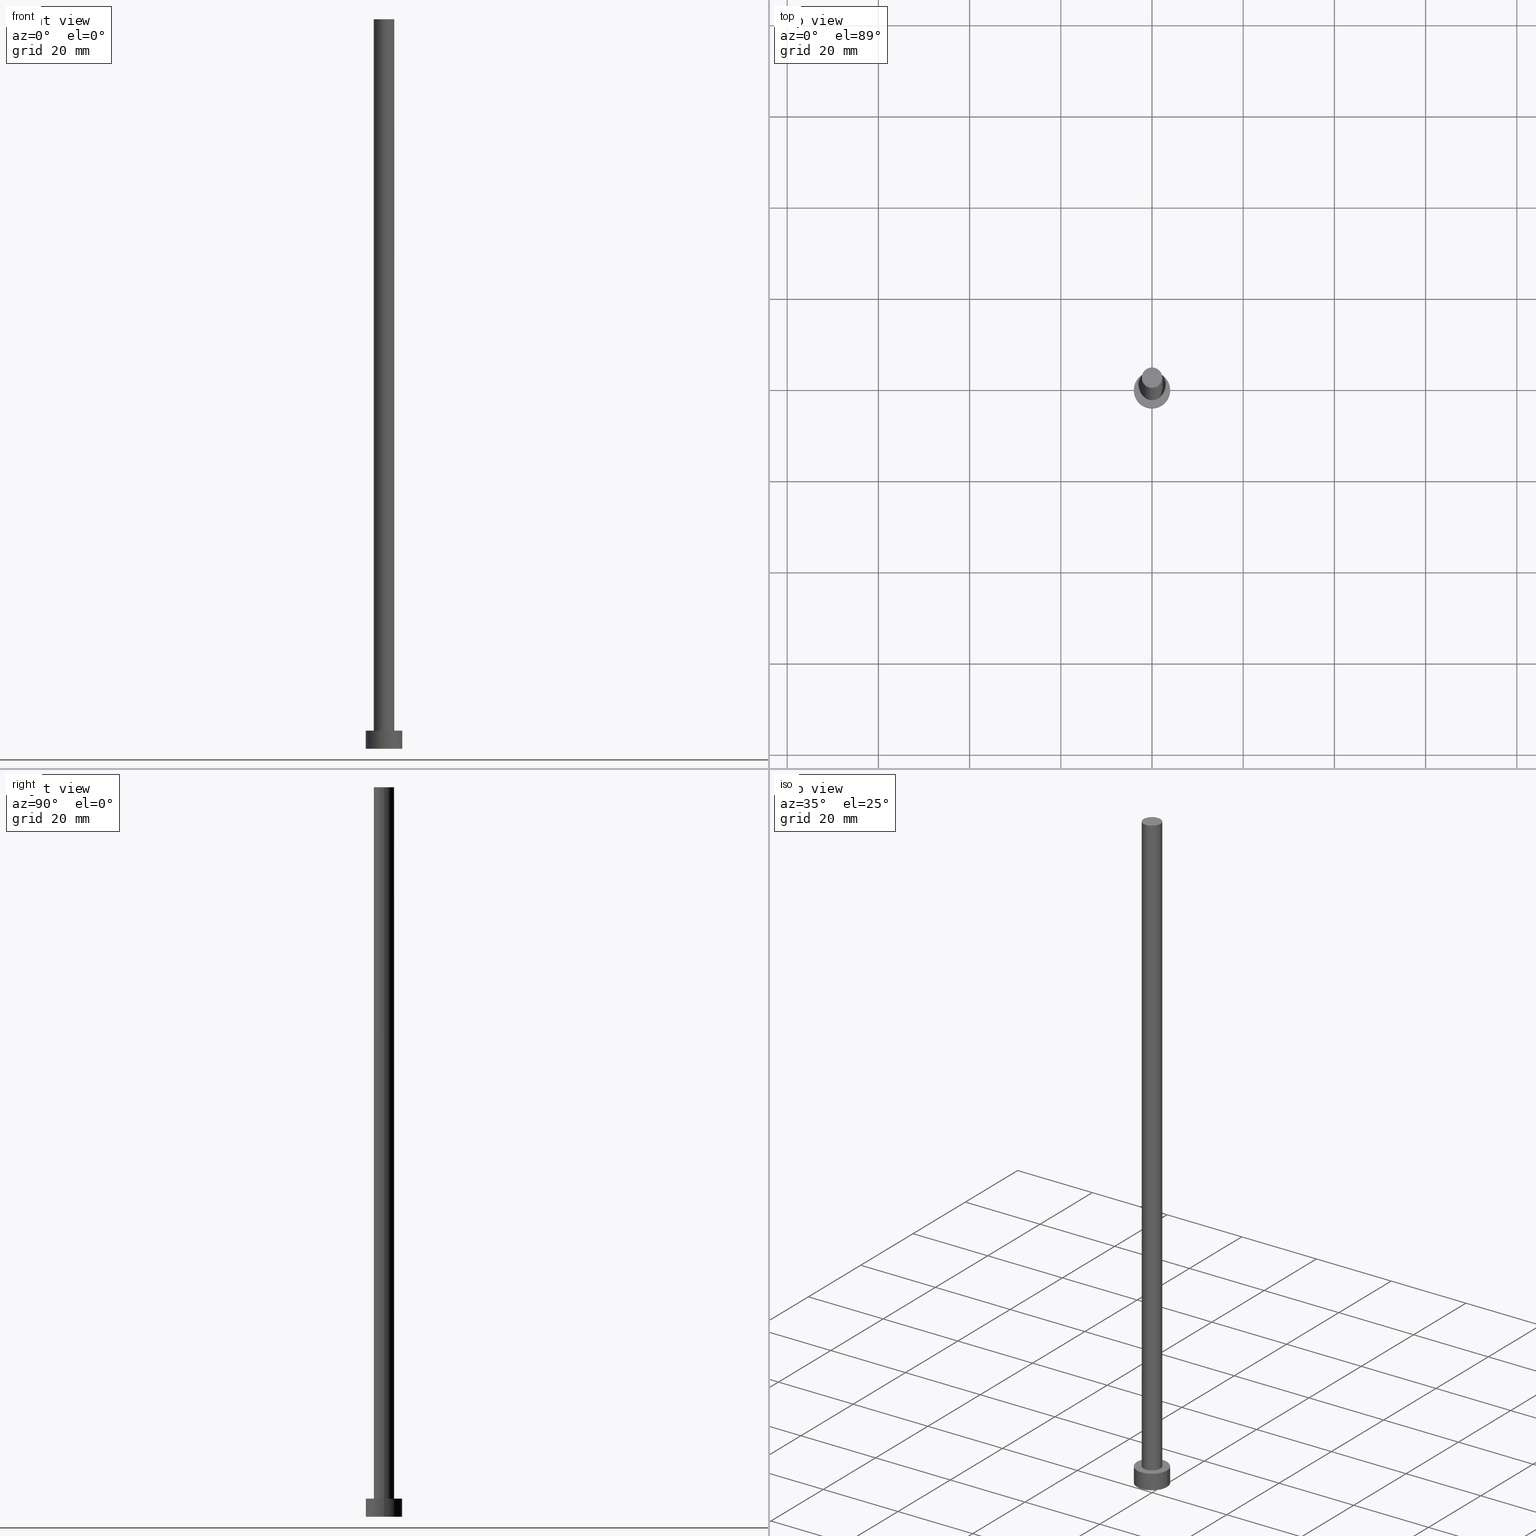
[diagram: canonical four-view strip — front | top / right | iso, engineering-drawing reading convention]
A machine part, canonical four-view strip (front | top / right | iso — engineering-drawing reading convention). The complete STEP part file that produces these views, byte-faithful:
ISO-10303-21;
HEADER;
FILE_DESCRIPTION (( 'STEP AP203' ),
    '1' );
FILE_NAME ('ed2b.STEP',
    '2023-02-13T16:20:48',
    ( '' ),
    ( '' ),
    'SwSTEP 2.0',
    'SolidWorks 2019',
    '' );
FILE_SCHEMA (( 'CONFIG_CONTROL_DESIGN' ));
ENDSEC;

DATA;
#1 = CARTESIAN_POINT ( 'NONE',  ( 2.250000000000000000, 2.755455298081544285E-16, 160.0000000000000000 ) ) ;
#2 = VECTOR ( 'NONE', #218, 1000.000000000000000 ) ;
#3 = APPLICATION_PROTOCOL_DEFINITION ( 'international standard', 'config_control_design', 1994, #136 ) ;
#4 = VERTEX_POINT ( 'NONE', #1 ) ;
#5 = AXIS2_PLACEMENT_3D ( 'NONE', #94, #140, #223 ) ;
#6 = ORIENTED_EDGE ( 'NONE', *, *, #172, .F. ) ;
#7 = DIRECTION ( 'NONE',  ( 0.000000000000000000, 0.000000000000000000, 1.000000000000000000 ) ) ;
#8 = FACE_OUTER_BOUND ( 'NONE', #186, .T. ) ;
#9 = DIRECTION ( 'NONE',  ( -0.000000000000000000, -0.000000000000000000, -1.000000000000000000 ) ) ;
#10 = FACE_OUTER_BOUND ( 'NONE', #206, .T. ) ;
#11 = VECTOR ( 'NONE', #240, 1000.000000000000000 ) ;
#12 = DATE_AND_TIME ( #67, #20 ) ;
#13 = DIRECTION ( 'NONE',  ( 1.000000000000000000, 0.000000000000000000, 0.000000000000000000 ) ) ;
#14 = AXIS2_PLACEMENT_3D ( 'NONE', #82, #127, #211 ) ;
#15 = LOCAL_TIME ( 17, 20, 48.00000000000000000, #170 ) ;
#16 = FACE_OUTER_BOUND ( 'NONE', #106, .T. ) ;
#17 = CC_DESIGN_PERSON_AND_ORGANIZATION_ASSIGNMENT ( #90, #244, ( #138 ) ) ;
#18 = DATE_AND_TIME ( #93, #182 ) ;
#19 = PRODUCT_DEFINITION_SHAPE ( 'NONE', 'NONE',  #22 ) ;
#20 = LOCAL_TIME ( 17, 20, 48.00000000000000000, #156 ) ;
#21 = ORIENTED_EDGE ( 'NONE', *, *, #172, .T. ) ;
#22 = PRODUCT_DEFINITION ( 'NEZN�M�', '', #149, #155 ) ;
#23 = ORIENTED_EDGE ( 'NONE', *, *, #200, .F. ) ;
#24 = EDGE_CURVE ( 'NONE', #4, #242, #166, .T. ) ;
#25 = VERTEX_POINT ( 'NONE', #59 ) ;
#26 = APPROVAL_DATE_TIME ( #209, #219 ) ;
#27 = ORIENTED_EDGE ( 'NONE', *, *, #181, .T. ) ;
#28 = LINE ( 'NONE', #30, #180 ) ;
#29 = CIRCLE ( 'NONE', #14, 2.250000000000000000 ) ;
#30 = CARTESIAN_POINT ( 'NONE',  ( 4.000000000000000000, 4.898587196589412829E-16, 4.000000000000000000 ) ) ;
#31 = APPROVAL_STATUS ( 'not_yet_approved' ) ;
#32 = CARTESIAN_POINT ( 'NONE',  ( 0.000000000000000000, 0.000000000000000000, 0.000000000000000000 ) ) ;
#33 = LINE ( 'NONE', #216, #2 ) ;
#34 = EDGE_CURVE ( 'NONE', #109, #242, #134, .T. ) ;
#35 = DIRECTION ( 'NONE',  ( 1.000000000000000000, 0.000000000000000000, 0.000000000000000000 ) ) ;
#36 = APPROVAL_DATE_TIME ( #18, #73 ) ;
#37 = CARTESIAN_POINT ( 'NONE',  ( 0.000000000000000000, 0.000000000000000000, 4.000000000000000000 ) ) ;
#38 = EDGE_CURVE ( 'NONE', #126, #100, #61, .T. ) ;
#39 = APPROVAL_ROLE ( '' ) ;
#40 = DIRECTION ( 'NONE',  ( 1.000000000000000000, 0.000000000000000000, 0.000000000000000000 ) ) ;
#41 = ORIENTED_EDGE ( 'NONE', *, *, #34, .F. ) ;
#42 = CARTESIAN_POINT ( 'NONE',  ( 2.250000000000000000, 2.755455298081544285E-16, 160.0000000000000000 ) ) ;
#43 = EDGE_LOOP ( 'NONE', ( #208, #124 ) ) ;
#44 = ORIENTED_EDGE ( 'NONE', *, *, #153, .F. ) ;
#45 = APPROVAL ( #31, 'NEUR�EN�' ) ;
#46 = CARTESIAN_POINT ( 'NONE',  ( -4.000000000000000000, 0.000000000000000000, 0.000000000000000000 ) ) ;
#47 = DIRECTION ( 'NONE',  ( 1.000000000000000000, 0.000000000000000000, 0.000000000000000000 ) ) ;
#48 = DIRECTION ( 'NONE',  ( -0.000000000000000000, -0.000000000000000000, -1.000000000000000000 ) ) ;
#49 = DIRECTION ( 'NONE',  ( 0.000000000000000000, 0.000000000000000000, 1.000000000000000000 ) ) ;
#50 = PRODUCT_RELATED_PRODUCT_CATEGORY ( 'detail', '', ( #138 ) ) ;
#51 = SECURITY_CLASSIFICATION ( '', '', #201 ) ;
#52 = LINE ( 'NONE', #53, #58 ) ;
#53 = CARTESIAN_POINT ( 'NONE',  ( -4.000000000000000000, 0.000000000000000000, 4.000000000000000000 ) ) ;
#54 = PERSON_AND_ORGANIZATION_ROLE ( 'classification_officer' ) ;
#55 = DIRECTION ( 'NONE',  ( 0.000000000000000000, 0.000000000000000000, 1.000000000000000000 ) ) ;
#56 = VERTEX_POINT ( 'NONE', #174 ) ;
#57 = AXIS2_PLACEMENT_3D ( 'NONE', #92, #130, #248 ) ;
#58 = VECTOR ( 'NONE', #139, 1000.000000000000000 ) ;
#59 = CARTESIAN_POINT ( 'NONE',  ( -2.250000000000000000, 0.000000000000000000, 160.0000000000000000 ) ) ;
#60 = ORIENTED_EDGE ( 'NONE', *, *, #228, .F. ) ;
#61 = CIRCLE ( 'NONE', #57, 4.000000000000000000 ) ;
#62 = PERSON_AND_ORGANIZATION_ROLE ( 'creator' ) ;
#63 = DIRECTION ( 'NONE',  ( 0.000000000000000000, 0.000000000000000000, 1.000000000000000000 ) ) ;
#64 = APPROVAL_ROLE ( '' ) ;
#65 = CYLINDRICAL_SURFACE ( 'NONE', #194, 4.000000000000000000 ) ;
#66 = DIRECTION ( 'NONE',  ( 0.000000000000000000, 0.000000000000000000, 1.000000000000000000 ) ) ;
#67 = CALENDAR_DATE ( 2023, 13, 2 ) ;
#68 = DIRECTION ( 'NONE',  ( -0.000000000000000000, -0.000000000000000000, -1.000000000000000000 ) ) ;
#69 = PERSON_AND_ORGANIZATION ( #160, #121 ) ;
#70 = DIRECTION ( 'NONE',  ( 1.000000000000000000, 0.000000000000000000, -0.000000000000000000 ) ) ;
#71 = CC_DESIGN_APPROVAL ( #219, ( #149 ) ) ;
#72 = PERSON_AND_ORGANIZATION_ROLE ( 'design_supplier' ) ;
#73 = APPROVAL ( #253, 'NEUR�EN�' ) ;
#74 = PERSON_AND_ORGANIZATION ( #160, #121 ) ;
#75 = CC_DESIGN_APPROVAL ( #45, ( #22 ) ) ;
#76 = ORIENTED_EDGE ( 'NONE', *, *, #164, .F. ) ;
#77 = APPROVAL_PERSON_ORGANIZATION ( #222, #73, #39 ) ;
#78 = EDGE_LOOP ( 'NONE', ( #6, #184, #169, #44 ) ) ;
#79 = ADVANCED_FACE ( 'NONE', ( #236 ), #151, .F. ) ;
#80 = ORIENTED_EDGE ( 'NONE', *, *, #38, .F. ) ;
#81 = APPROVAL_STATUS ( 'not_yet_approved' ) ;
#82 = CARTESIAN_POINT ( 'NONE',  ( 0.000000000000000000, 0.000000000000000000, 160.0000000000000000 ) ) ;
#83 = CC_DESIGN_PERSON_AND_ORGANIZATION_ASSIGNMENT ( #74, #72, ( #149 ) ) ;
#84 = APPLICATION_PROTOCOL_DEFINITION ( 'international standard', 'config_control_design', 1994, #198 ) ;
#85 = FACE_OUTER_BOUND ( 'NONE', #43, .T. ) ;
#86 = DIRECTION ( 'NONE',  ( 1.000000000000000000, 0.000000000000000000, 0.000000000000000000 ) ) ;
#87 = PERSON_AND_ORGANIZATION_ROLE ( 'creator' ) ;
#88 = CYLINDRICAL_SURFACE ( 'NONE', #224, 2.250000000000000000 ) ;
#89 = AXIS2_PLACEMENT_3D ( 'NONE', #129, #217, #190 ) ;
#90 = PERSON_AND_ORGANIZATION ( #160, #121 ) ;
#91 = ADVANCED_FACE ( 'NONE', ( #112, #85 ), #232, .T. ) ;
#92 = CARTESIAN_POINT ( 'NONE',  ( 0.000000000000000000, 0.000000000000000000, 4.000000000000000000 ) ) ;
#93 = CALENDAR_DATE ( 2023, 13, 2 ) ;
#94 = CARTESIAN_POINT ( 'NONE',  ( 0.000000000000000000, 0.000000000000000000, 160.0000000000000000 ) ) ;
#95 = DATE_AND_TIME ( #178, #105 ) ;
#96 = PERSON_AND_ORGANIZATION ( #160, #121 ) ;
#97 = CC_DESIGN_PERSON_AND_ORGANIZATION_ASSIGNMENT ( #96, #54, ( #51 ) ) ;
#98 = AXIS2_PLACEMENT_3D ( 'NONE', #152, #66, #70 ) ;
#99 =( NAMED_UNIT ( * ) PLANE_ANGLE_UNIT ( ) SI_UNIT ( $, .RADIAN. ) );
#100 = VERTEX_POINT ( 'NONE', #246 ) ;
#101 = CARTESIAN_POINT ( 'NONE',  ( 2.250000000000000000, 2.755455298081544285E-16, 4.000000000000000000 ) ) ;
#102 = ADVANCED_FACE ( 'NONE', ( #8 ), #110, .T. ) ;
#103 = AXIS2_PLACEMENT_3D ( 'NONE', #37, #119, #202 ) ;
#104 =( LENGTH_UNIT ( ) NAMED_UNIT ( * ) SI_UNIT ( .MILLI., .METRE. ) );
#105 = LOCAL_TIME ( 17, 20, 48.00000000000000000, #161 ) ;
#106 = EDGE_LOOP ( 'NONE', ( #205, #239, #229, #230 ) ) ;
#107 = ORIENTED_EDGE ( 'NONE', *, *, #200, .T. ) ;
#108 = PERSON_AND_ORGANIZATION ( #160, #121 ) ;
#109 = VERTEX_POINT ( 'NONE', #154 ) ;
#110 = PLANE ( 'NONE',  #98 ) ;
#111 = APPROVAL_DATE_TIME ( #215, #45 ) ;
#112 = FACE_BOUND ( 'NONE', #227, .T. ) ;
#113 = MANIFOLD_SOLID_BREP ( 'P�idat vysunut�m3', #179 ) ;
#114 = ADVANCED_FACE ( 'NONE', ( #234 ), #65, .T. ) ;
#115 = CARTESIAN_POINT ( 'NONE',  ( 0.000000000000000000, 0.000000000000000000, 0.000000000000000000 ) ) ;
#116 = FACE_OUTER_BOUND ( 'NONE', #78, .T. ) ;
#117 = CIRCLE ( 'NONE', #103, 2.250000000000000000 ) ;
#118 = SHAPE_DEFINITION_REPRESENTATION ( #19, #196 ) ;
#119 = DIRECTION ( 'NONE',  ( 0.000000000000000000, 0.000000000000000000, 1.000000000000000000 ) ) ;
#120 = COORDINATED_UNIVERSAL_TIME_OFFSET ( 1, 0, .AHEAD. ) ;
#121 = ORGANIZATION ( 'NEUR�EN�', 'NEUR�EN�', '' ) ;
#122 = ORIENTED_EDGE ( 'NONE', *, *, #238, .F. ) ;
#123 = CARTESIAN_POINT ( 'NONE',  ( 0.000000000000000000, 0.000000000000000000, 4.000000000000000000 ) ) ;
#124 = ORIENTED_EDGE ( 'NONE', *, *, #228, .T. ) ;
#125 = CALENDAR_DATE ( 2023, 13, 2 ) ;
#126 = VERTEX_POINT ( 'NONE', #133 ) ;
#127 = DIRECTION ( 'NONE',  ( 0.000000000000000000, 0.000000000000000000, 1.000000000000000000 ) ) ;
#128 = AXIS2_PLACEMENT_3D ( 'NONE', #123, #171, #86 ) ;
#129 = CARTESIAN_POINT ( 'NONE',  ( 0.000000000000000000, 0.000000000000000000, 0.000000000000000000 ) ) ;
#130 = DIRECTION ( 'NONE',  ( 0.000000000000000000, 0.000000000000000000, 1.000000000000000000 ) ) ;
#131 = CALENDAR_DATE ( 2023, 13, 2 ) ;
#132 = DIRECTION ( 'NONE',  ( -1.000000000000000000, 0.000000000000000000, 0.000000000000000000 ) ) ;
#133 = CARTESIAN_POINT ( 'NONE',  ( -4.000000000000000000, 0.000000000000000000, 4.000000000000000000 ) ) ;
#134 = CIRCLE ( 'NONE', #128, 2.250000000000000000 ) ;
#135 = DIRECTION ( 'NONE',  ( 1.000000000000000000, 0.000000000000000000, -0.000000000000000000 ) ) ;
#136 = APPLICATION_CONTEXT ( 'configuration controlled 3d designs of mechanical parts and assemblies' ) ;
#137 = EDGE_CURVE ( 'NONE', #56, #150, #243, .T. ) ;
#138 = PRODUCT ( 'ed2b', 'ed2b', '', ( #173 ) ) ;
#139 = DIRECTION ( 'NONE',  ( -0.000000000000000000, -0.000000000000000000, -1.000000000000000000 ) ) ;
#140 = DIRECTION ( 'NONE',  ( -0.000000000000000000, -0.000000000000000000, -1.000000000000000000 ) ) ;
#141 = CC_DESIGN_SECURITY_CLASSIFICATION ( #51, ( #149 ) ) ;
#142 = ADVANCED_FACE ( 'NONE', ( #10 ), #214, .T. ) ;
#143 = ORIENTED_EDGE ( 'NONE', *, *, #137, .F. ) ;
#144 = AXIS2_PLACEMENT_3D ( 'NONE', #250, #7, #47 ) ;
#145 = CC_DESIGN_PERSON_AND_ORGANIZATION_ASSIGNMENT ( #192, #87, ( #22 ) ) ;
#146 = ORIENTED_EDGE ( 'NONE', *, *, #164, .T. ) ;
#147 =( NAMED_UNIT ( * ) SI_UNIT ( $, .STERADIAN. ) SOLID_ANGLE_UNIT ( ) );
#148 = AXIS2_PLACEMENT_3D ( 'NONE', #233, #48, #132 ) ;
#149 = PRODUCT_DEFINITION_FORMATION_WITH_SPECIFIED_SOURCE ( 'LIBOVOLN�', '', #138, .NOT_KNOWN. ) ;
#150 = VERTEX_POINT ( 'NONE', #46 ) ;
#151 = PLANE ( 'NONE',  #212 ) ;
#152 = CARTESIAN_POINT ( 'NONE',  ( 0.000000000000000000, 0.000000000000000000, 160.0000000000000000 ) ) ;
#153 = EDGE_CURVE ( 'NONE', #25, #109, #33, .T. ) ;
#154 = CARTESIAN_POINT ( 'NONE',  ( -2.250000000000000000, 0.000000000000000000, 4.000000000000000000 ) ) ;
#155 = DESIGN_CONTEXT ( 'detailed design', #198, 'design' ) ;
#156 = COORDINATED_UNIVERSAL_TIME_OFFSET ( 1, 0, .AHEAD. ) ;
#157 = DIRECTION ( 'NONE',  ( -1.000000000000000000, 0.000000000000000000, 0.000000000000000000 ) ) ;
#158 = COORDINATED_UNIVERSAL_TIME_OFFSET ( 1, 0, .AHEAD. ) ;
#159 = ADVANCED_FACE ( 'NONE', ( #116 ), #88, .T. ) ;
#160 = PERSON ( 'NEUR�EN�', 'NEUR�EN�', 'NEUR�EN�', ('NEUR�EN�'), ('NEUR�EN�'), ('NEUR�EN�') ) ;
#161 = COORDINATED_UNIVERSAL_TIME_OFFSET ( 1, 0, .AHEAD. ) ;
#162 = AXIS2_PLACEMENT_3D ( 'NONE', #245, #63, #189 ) ;
#163 = ORIENTED_EDGE ( 'NONE', *, *, #137, .T. ) ;
#164 = EDGE_CURVE ( 'NONE', #150, #56, #203, .T. ) ;
#165 = AXIS2_PLACEMENT_3D ( 'NONE', #32, #235, #35 ) ;
#166 = LINE ( 'NONE', #42, #11 ) ;
#167 = AXIS2_PLACEMENT_3D ( 'NONE', #199, #55, #40 ) ;
#168 = LOCAL_TIME ( 17, 20, 48.00000000000000000, #158 ) ;
#169 = ORIENTED_EDGE ( 'NONE', *, *, #238, .T. ) ;
#170 = COORDINATED_UNIVERSAL_TIME_OFFSET ( 1, 0, .AHEAD. ) ;
#171 = DIRECTION ( 'NONE',  ( 0.000000000000000000, 0.000000000000000000, 1.000000000000000000 ) ) ;
#172 = EDGE_CURVE ( 'NONE', #4, #25, #251, .T. ) ;
#173 = MECHANICAL_CONTEXT ( 'NONE', #136, 'mechanical' ) ;
#174 = CARTESIAN_POINT ( 'NONE',  ( 4.000000000000000000, 4.898587196589412829E-16, 0.000000000000000000 ) ) ;
#175 = CARTESIAN_POINT ( 'NONE',  ( 0.000000000000000000, 0.000000000000000000, 160.0000000000000000 ) ) ;
#176 = DATE_TIME_ROLE ( 'creation_date' ) ;
#177 = CARTESIAN_POINT ( 'NONE',  ( 0.000000000000000000, 0.000000000000000000, 0.000000000000000000 ) ) ;
#178 = CALENDAR_DATE ( 2023, 13, 2 ) ;
#179 = CLOSED_SHELL ( 'NONE', ( #159, #114, #142, #91, #79, #231, #102 ) ) ;
#180 = VECTOR ( 'NONE', #9, 1000.000000000000000 ) ;
#181 = EDGE_CURVE ( 'NONE', #25, #4, #29, .T. ) ;
#182 = LOCAL_TIME ( 17, 20, 48.00000000000000000, #120 ) ;
#183 = CC_DESIGN_DATE_AND_TIME_ASSIGNMENT ( #12, #176, ( #22 ) ) ;
#184 = ORIENTED_EDGE ( 'NONE', *, *, #24, .T. ) ;
#185 = EDGE_LOOP ( 'NONE', ( #76, #143 ) ) ;
#186 = EDGE_LOOP ( 'NONE', ( #27, #21 ) ) ;
#187 = PERSON_AND_ORGANIZATION ( #160, #121 ) ;
#188 = CC_DESIGN_APPROVAL ( #73, ( #51 ) ) ;
#189 = DIRECTION ( 'NONE',  ( 1.000000000000000000, 0.000000000000000000, -0.000000000000000000 ) ) ;
#190 = DIRECTION ( 'NONE',  ( 1.000000000000000000, 0.000000000000000000, 0.000000000000000000 ) ) ;
#191 = DIRECTION ( 'NONE',  ( -0.000000000000000000, -0.000000000000000000, -1.000000000000000000 ) ) ;
#192 = PERSON_AND_ORGANIZATION ( #160, #121 ) ;
#193 = DIRECTION ( 'NONE',  ( -1.000000000000000000, 0.000000000000000000, 0.000000000000000000 ) ) ;
#194 = AXIS2_PLACEMENT_3D ( 'NONE', #220, #191, #193 ) ;
#195 = DIRECTION ( 'NONE',  ( 0.000000000000000000, 0.000000000000000000, 1.000000000000000000 ) ) ;
#196 = ADVANCED_BREP_SHAPE_REPRESENTATION ( 'ed2b', ( #113, #89 ), #207 ) ;
#197 = UNCERTAINTY_MEASURE_WITH_UNIT (LENGTH_MEASURE( 1.000000000000000082E-05 ), #104, 'distance_accuracy_value', 'NONE');
#198 = APPLICATION_CONTEXT ( 'configuration controlled 3d designs of mechanical parts and assemblies' ) ;
#199 = CARTESIAN_POINT ( 'NONE',  ( 0.000000000000000000, 0.000000000000000000, 4.000000000000000000 ) ) ;
#200 = EDGE_CURVE ( 'NONE', #100, #56, #28, .T. ) ;
#201 = SECURITY_CLASSIFICATION_LEVEL ( 'unclassified' ) ;
#202 = DIRECTION ( 'NONE',  ( 1.000000000000000000, 0.000000000000000000, 0.000000000000000000 ) ) ;
#203 = CIRCLE ( 'NONE', #237, 4.000000000000000000 ) ;
#204 = APPROVAL_PERSON_ORGANIZATION ( #187, #45, #64 ) ;
#205 = ORIENTED_EDGE ( 'NONE', *, *, #24, .F. ) ;
#206 = EDGE_LOOP ( 'NONE', ( #23, #80, #226, #146 ) ) ;
#207 =( GEOMETRIC_REPRESENTATION_CONTEXT ( 3 ) GLOBAL_UNCERTAINTY_ASSIGNED_CONTEXT ( ( #197 ) ) GLOBAL_UNIT_ASSIGNED_CONTEXT ( ( #104, #99, #147 ) ) REPRESENTATION_CONTEXT ( 'NONE', 'WORKASPACE' ) );
#208 = ORIENTED_EDGE ( 'NONE', *, *, #38, .T. ) ;
#209 = DATE_AND_TIME ( #125, #168 ) ;
#210 = EDGE_CURVE ( 'NONE', #126, #150, #52, .T. ) ;
#211 = DIRECTION ( 'NONE',  ( 1.000000000000000000, 0.000000000000000000, 0.000000000000000000 ) ) ;
#212 = AXIS2_PLACEMENT_3D ( 'NONE', #177, #49, #135 ) ;
#213 = CIRCLE ( 'NONE', #167, 4.000000000000000000 ) ;
#214 = CYLINDRICAL_SURFACE ( 'NONE', #148, 4.000000000000000000 ) ;
#215 = DATE_AND_TIME ( #131, #15 ) ;
#216 = CARTESIAN_POINT ( 'NONE',  ( -2.250000000000000000, 0.000000000000000000, 160.0000000000000000 ) ) ;
#217 = DIRECTION ( 'NONE',  ( 0.000000000000000000, 0.000000000000000000, 1.000000000000000000 ) ) ;
#218 = DIRECTION ( 'NONE',  ( -0.000000000000000000, -0.000000000000000000, -1.000000000000000000 ) ) ;
#219 = APPROVAL ( #81, 'NEUR�EN�' ) ;
#220 = CARTESIAN_POINT ( 'NONE',  ( 0.000000000000000000, 0.000000000000000000, 4.000000000000000000 ) ) ;
#221 = DATE_TIME_ROLE ( 'classification_date' ) ;
#222 = PERSON_AND_ORGANIZATION ( #160, #121 ) ;
#223 = DIRECTION ( 'NONE',  ( -1.000000000000000000, 0.000000000000000000, 0.000000000000000000 ) ) ;
#224 = AXIS2_PLACEMENT_3D ( 'NONE', #175, #68, #157 ) ;
#225 = ORIENTED_EDGE ( 'NONE', *, *, #210, .F. ) ;
#226 = ORIENTED_EDGE ( 'NONE', *, *, #210, .T. ) ;
#227 = EDGE_LOOP ( 'NONE', ( #41, #122 ) ) ;
#228 = EDGE_CURVE ( 'NONE', #100, #126, #213, .T. ) ;
#229 = ORIENTED_EDGE ( 'NONE', *, *, #153, .T. ) ;
#230 = ORIENTED_EDGE ( 'NONE', *, *, #34, .T. ) ;
#231 = ADVANCED_FACE ( 'NONE', ( #16 ), #254, .T. ) ;
#232 = PLANE ( 'NONE',  #162 ) ;
#233 = CARTESIAN_POINT ( 'NONE',  ( 0.000000000000000000, 0.000000000000000000, 4.000000000000000000 ) ) ;
#234 = FACE_OUTER_BOUND ( 'NONE', #241, .T. ) ;
#235 = DIRECTION ( 'NONE',  ( 0.000000000000000000, 0.000000000000000000, 1.000000000000000000 ) ) ;
#236 = FACE_OUTER_BOUND ( 'NONE', #185, .T. ) ;
#237 = AXIS2_PLACEMENT_3D ( 'NONE', #115, #195, #13 ) ;
#238 = EDGE_CURVE ( 'NONE', #242, #109, #117, .T. ) ;
#239 = ORIENTED_EDGE ( 'NONE', *, *, #181, .F. ) ;
#240 = DIRECTION ( 'NONE',  ( -0.000000000000000000, -0.000000000000000000, -1.000000000000000000 ) ) ;
#241 = EDGE_LOOP ( 'NONE', ( #60, #107, #163, #225 ) ) ;
#242 = VERTEX_POINT ( 'NONE', #101 ) ;
#243 = CIRCLE ( 'NONE', #165, 4.000000000000000000 ) ;
#244 = PERSON_AND_ORGANIZATION_ROLE ( 'design_owner' ) ;
#245 = CARTESIAN_POINT ( 'NONE',  ( 0.000000000000000000, 0.000000000000000000, 4.000000000000000000 ) ) ;
#246 = CARTESIAN_POINT ( 'NONE',  ( 4.000000000000000000, 4.898587196589412829E-16, 4.000000000000000000 ) ) ;
#247 = CC_DESIGN_PERSON_AND_ORGANIZATION_ASSIGNMENT ( #108, #62, ( #149 ) ) ;
#248 = DIRECTION ( 'NONE',  ( 1.000000000000000000, 0.000000000000000000, 0.000000000000000000 ) ) ;
#249 = APPROVAL_ROLE ( '' ) ;
#250 = CARTESIAN_POINT ( 'NONE',  ( 0.000000000000000000, 0.000000000000000000, 160.0000000000000000 ) ) ;
#251 = CIRCLE ( 'NONE', #144, 2.250000000000000000 ) ;
#252 = APPROVAL_PERSON_ORGANIZATION ( #69, #219, #249 ) ;
#253 = APPROVAL_STATUS ( 'not_yet_approved' ) ;
#254 = CYLINDRICAL_SURFACE ( 'NONE', #5, 2.250000000000000000 ) ;
#255 = CC_DESIGN_DATE_AND_TIME_ASSIGNMENT ( #95, #221, ( #51 ) ) ;
ENDSEC;
END-ISO-10303-21;
